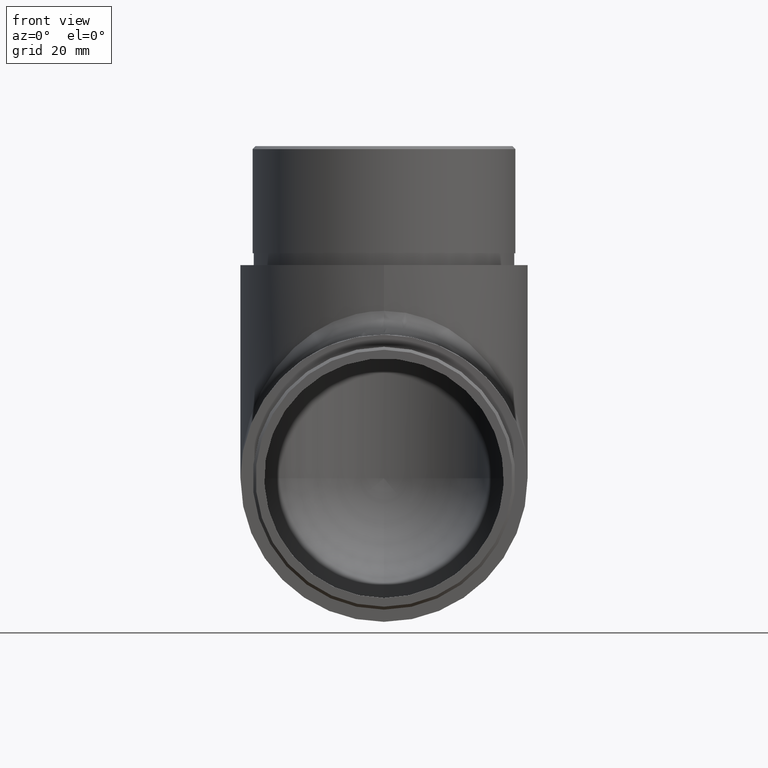
[diagram: clean part render]
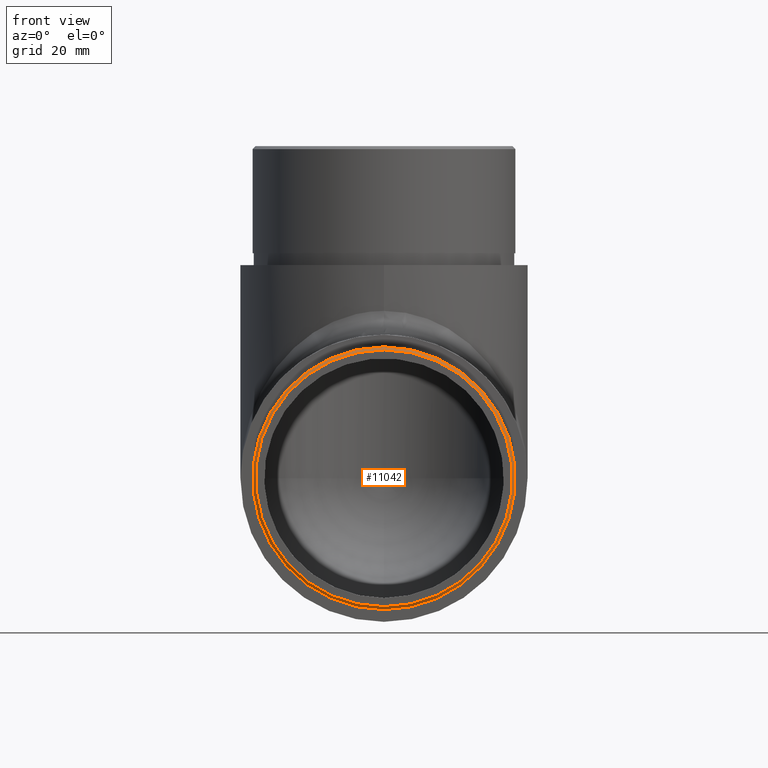
[diagram: same view with one face highlighted and labeled with its STEP entity id]
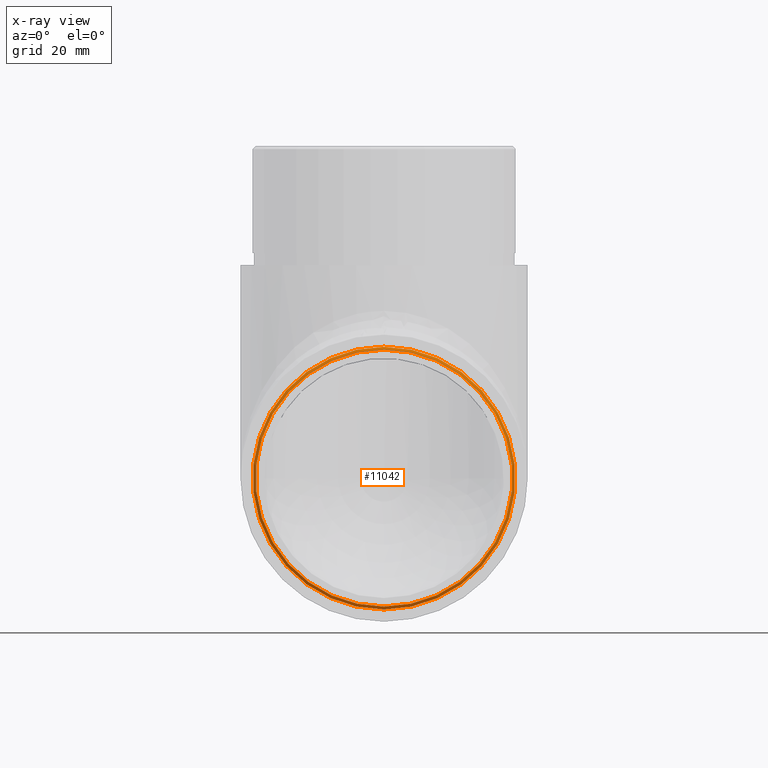
[diagram: x-ray of the same camera — body ghosted, the highlighted face saturated]
A machine part, front view. The second image highlights one B-rep face of the part: STEP entity #11042.
The next image is the same camera in x-ray: the body ghosted, the highlighted face saturated — about 0% of this face is hidden behind the body in this view.
In plain terms, the highlighted conical surface has half-angle 45 deg.
Its self-contained STEP definition (entity closure, byte-faithful):
#177 = CIRCLE ( 'NONE', #11220, 22.10000000000000142 ) ;
#527 = AXIS2_PLACEMENT_3D ( 'NONE', #982, #8933, #4881 ) ;
#619 = VERTEX_POINT ( 'NONE', #10030 ) ;
#982 = CARTESIAN_POINT ( 'NONE',  ( 3.469446951953614189E-15, -19.99999999999999645, 24.15000000000000568 ) ) ;
#1363 = EDGE_CURVE ( 'NONE', #10387, #10387, #177, .T. ) ;
#1935 = EDGE_CURVE ( 'NONE', #619, #619, #6388, .T. ) ;
#3212 = CARTESIAN_POINT ( 'NONE',  ( 3.469446951953614189E-15, -19.49999999999997868, 2.050000000000003375 ) ) ;
#3776 = FACE_BOUND ( 'NONE', #8589, .T. ) ;
#4643 = ORIENTED_EDGE ( 'NONE', *, *, #1935, .F. ) ;
#4881 = DIRECTION ( 'NONE',  ( 0.000000000000000000, 0.000000000000000000, -1.000000000000000000 ) ) ;
#4941 = ORIENTED_EDGE ( 'NONE', *, *, #1363, .F. ) ;
#5960 = CARTESIAN_POINT ( 'NONE',  ( 3.469446951953614189E-15, -19.99999999999999645, 24.15000000000000568 ) ) ;
#6388 = CIRCLE ( 'NONE', #527, 21.59999999999997300 ) ;
#6884 = DIRECTION ( 'NONE',  ( 0.000000000000000000, 1.000000000000000000, 0.000000000000000000 ) ) ;
#7867 = DIRECTION ( 'NONE',  ( 0.000000000000000000, 0.000000000000000000, 1.000000000000000000 ) ) ;
#8110 = CONICAL_SURFACE ( 'NONE', #10766, 21.59999999999997300, 0.7853981633974587151 ) ;
#8589 = EDGE_LOOP ( 'NONE', ( #4643 ) ) ;
#8933 = DIRECTION ( 'NONE',  ( 0.000000000000000000, -1.000000000000000000, 0.000000000000000000 ) ) ;
#9612 = CARTESIAN_POINT ( 'NONE',  ( 3.469446951953614189E-15, -19.49999999999997868, 24.15000000000000568 ) ) ;
#10030 = CARTESIAN_POINT ( 'NONE',  ( 3.469446951953614189E-15, -19.99999999999999645, 2.550000000000031353 ) ) ;
#10387 = VERTEX_POINT ( 'NONE', #3212 ) ;
#10594 = FACE_OUTER_BOUND ( 'NONE', #12734, .T. ) ;
#10766 = AXIS2_PLACEMENT_3D ( 'NONE', #5960, #6884, #7867 ) ;
#11042 = ADVANCED_FACE ( 'NONE', ( #10594, #3776 ), #8110, .T. ) ;
#11220 = AXIS2_PLACEMENT_3D ( 'NONE', #9612, #11631, #12623 ) ;
#11631 = DIRECTION ( 'NONE',  ( 0.000000000000000000, 1.000000000000000000, 0.000000000000000000 ) ) ;
#12623 = DIRECTION ( 'NONE',  ( 0.000000000000000000, 0.000000000000000000, -1.000000000000000000 ) ) ;
#12734 = EDGE_LOOP ( 'NONE', ( #4941 ) ) ;